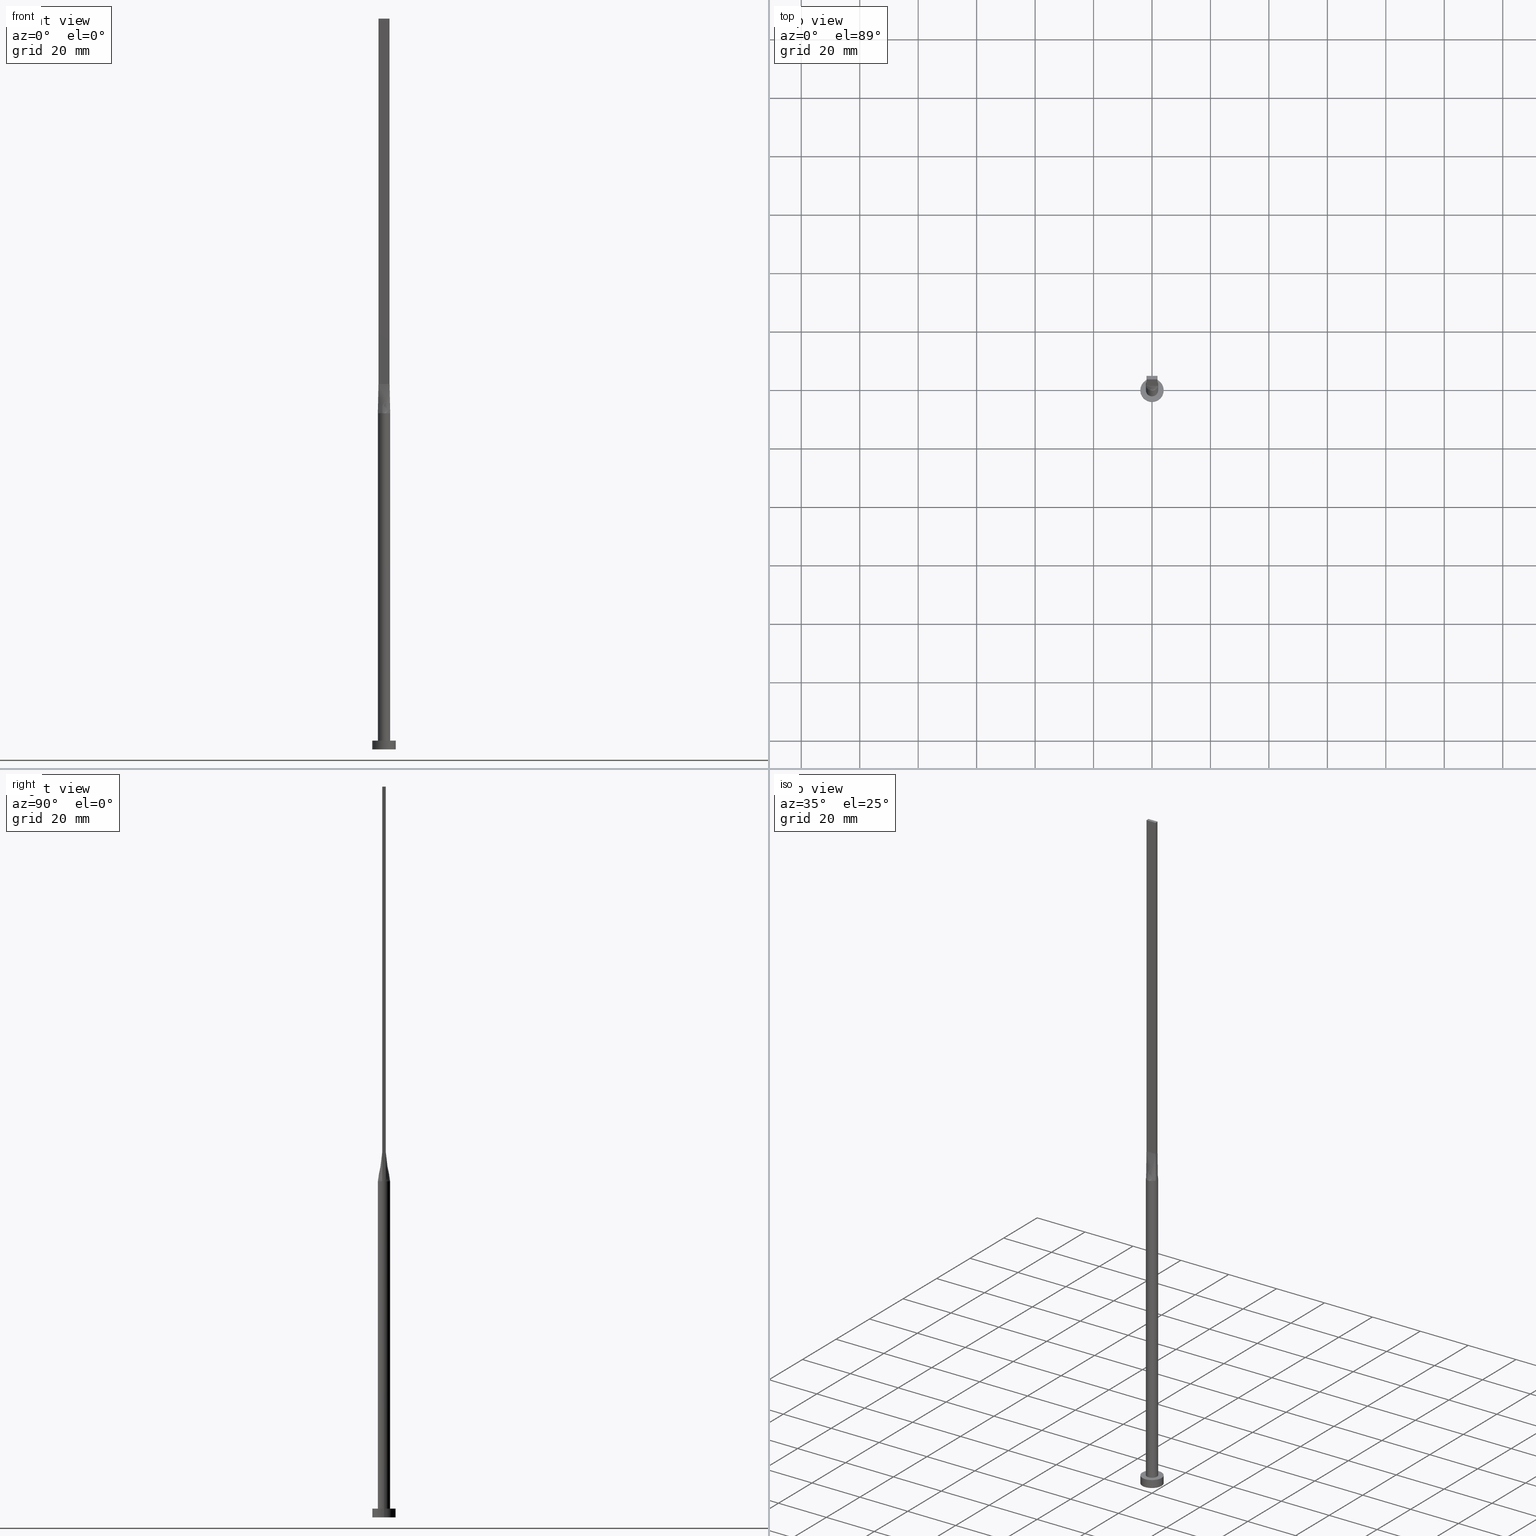
[diagram: canonical four-view strip — front | top / right | iso, engineering-drawing reading convention]
A machine part, canonical four-view strip (front | top / right | iso — engineering-drawing reading convention). The complete STEP part file that produces these views, byte-faithful:
ISO-10303-21;
HEADER;
FILE_DESCRIPTION (( 'STEP AP203' ),
    '1' );
FILE_NAME ('8b6a.STEP',
    '2023-02-13T13:18:50',
    ( '' ),
    ( '' ),
    'SwSTEP 2.0',
    'SolidWorks 2019',
    '' );
FILE_SCHEMA (( 'CONFIG_CONTROL_DESIGN' ));
ENDSEC;

DATA;
#1 = AXIS2_PLACEMENT_3D ( 'NONE', #377, #75, #567 ) ;
#2 = CARTESIAN_POINT ( 'NONE',  ( -0.3166666666666659302, 0.6000000000000000888, 125.0000000000000000 ) ) ;
#3 = DIRECTION ( 'NONE',  ( 1.807003620809174632E-16, 1.000000000000000000, 0.000000000000000000 ) ) ;
#4 = CARTESIAN_POINT ( 'NONE',  ( 0.000000000000000000, 0.000000000000000000, 3.000000000000000000 ) ) ;
#5 = ORIENTED_EDGE ( 'NONE', *, *, #559, .T. ) ;
#6 = APPLICATION_CONTEXT ( 'configuration controlled 3d designs of mechanical parts and assemblies' ) ;
#7 = CIRCLE ( 'NONE', #133, 2.100000000000000089 ) ;
#8 = APPROVAL ( #542, 'NEUR�EN�' ) ;
#9 = ORIENTED_EDGE ( 'NONE', *, *, #176, .T. ) ;
#10 = EDGE_CURVE ( 'NONE', #323, #236, #510, .T. ) ;
#11 = DIRECTION ( 'NONE',  ( 1.000000000000000000, 0.000000000000000000, 0.000000000000000000 ) ) ;
#12 = LINE ( 'NONE', #104, #456 ) ;
#13 = VERTEX_POINT ( 'NONE', #453 ) ;
#14 = ADVANCED_FACE ( 'NONE', ( #61 ), #472, .F. ) ;
#15 = EDGE_CURVE ( 'NONE', #528, #236, #26, .T. ) ;
#16 = LINE ( 'NONE', #231, #225 ) ;
#17 = CARTESIAN_POINT ( 'NONE',  ( 2.002598039528881380, 0.6323997261616642884, 115.0000000000000000 ) ) ;
#18 = EDGE_LOOP ( 'NONE', ( #283, #174, #148, #552 ) ) ;
#19 = CARTESIAN_POINT ( 'NONE',  ( 1.899999999999999689, 0.6000000000000001998, 250.0000000000000000 ) ) ;
#20 = PERSON_AND_ORGANIZATION ( #294, #221 ) ;
#21 = DIRECTION ( 'NONE',  ( 1.000000000000000000, 0.000000000000000000, 0.000000000000000000 ) ) ;
#22 = DIRECTION ( 'NONE',  ( -1.000000000000000000, -0.000000000000000000, -0.000000000000000000 ) ) ;
#23 = CARTESIAN_POINT ( 'NONE',  ( -2.002622288503867587, 0.6324075186587619912, 115.0000000000000000 ) ) ;
#24 = ORIENTED_EDGE ( 'NONE', *, *, #499, .T. ) ;
#25 = PERSON_AND_ORGANIZATION ( #294, #221 ) ;
#26 = CIRCLE ( 'NONE', #101, 2.100000000000000089 ) ;
#27 = PRODUCT_DEFINITION_FORMATION_WITH_SPECIFIED_SOURCE ( 'LIBOVOLN�', '', #83, .NOT_KNOWN. ) ;
#28 = CARTESIAN_POINT ( 'NONE',  ( 2.002523596781697890, -0.6323758726679050701, 115.0000000000000000 ) ) ;
#29 = DATE_AND_TIME ( #239, #46 ) ;
#30 = CARTESIAN_POINT ( 'NONE',  ( -2.002601997802567535, -0.6324010168594718095, 115.0000000000000000 ) ) ;
#31 = CARTESIAN_POINT ( 'NONE',  ( 0.000000000000000000, 0.000000000000000000, 3.000000000000000000 ) ) ;
#32 = CARTESIAN_POINT ( 'NONE',  ( -1.899999999999999467, 0.1999999999999999278, 125.0000000000000000 ) ) ;
#33 = PERSON_AND_ORGANIZATION_ROLE ( 'design_owner' ) ;
#34 = FACE_OUTER_BOUND ( 'NONE', #244, .T. ) ;
#35 = EDGE_LOOP ( 'NONE', ( #91, #356, #36, #533 ) ) ;
#36 = ORIENTED_EDGE ( 'NONE', *, *, #534, .T. ) ;
#37 = CIRCLE ( 'NONE', #546, 2.100000000000000089 ) ;
#38 = FACE_OUTER_BOUND ( 'NONE', #138, .T. ) ;
#39 = CIRCLE ( 'NONE', #506, 4.000000000000000000 ) ;
#40 = APPLICATION_CONTEXT ( 'configuration controlled 3d designs of mechanical parts and assemblies' ) ;
#41 = CARTESIAN_POINT ( 'NONE',  ( -1.667357759214464830, 1.291791096182927534, 115.0000000000000000 ) ) ;
#42 = EDGE_CURVE ( 'NONE', #13, #190, #502, .T. ) ;
#43 = ORIENTED_EDGE ( 'NONE', *, *, #85, .T. ) ;
#44 = ORIENTED_EDGE ( 'NONE', *, *, #193, .T. ) ;
#45 = CARTESIAN_POINT ( 'NONE',  ( 0.1583333333333339366, 0.6000000000000000888, 125.0000000000000000 ) ) ;
#46 = LOCAL_TIME ( 14, 18, 50.00000000000000000, #289 ) ;
#47 = ORIENTED_EDGE ( 'NONE', *, *, #485, .T. ) ;
#48 = PLANE ( 'NONE',  #166 ) ;
#49 = CARTESIAN_POINT ( 'NONE',  ( -1.899999999999999689, 0.6000000000000001998, 250.0000000000000000 ) ) ;
#50 =( NAMED_UNIT ( * ) SI_UNIT ( $, .STERADIAN. ) SOLID_ANGLE_UNIT ( ) );
#51 = ORIENTED_EDGE ( 'NONE', *, *, #42, .T. ) ;
#52 = DIRECTION ( 'NONE',  ( -0.000000000000000000, -0.000000000000000000, -1.000000000000000000 ) ) ;
#53 = CARTESIAN_POINT ( 'NONE',  ( 1.583333333333333703, 0.6000000000000001998, 125.0000000000000000 ) ) ;
#54 = DIRECTION ( 'NONE',  ( -0.000000000000000000, -0.000000000000000000, -1.000000000000000000 ) ) ;
#55 = MANIFOLD_SOLID_BREP ( 'P�idat vysunut�m5', #268 ) ;
#56 = CC_DESIGN_DATE_AND_TIME_ASSIGNMENT ( #470, #119, ( #135 ) ) ;
#57 = LOCAL_TIME ( 14, 18, 50.00000000000000000, #532 ) ;
#58 = CARTESIAN_POINT ( 'NONE',  ( 0.000000000000000000, 0.000000000000000000, 115.0000000000000000 ) ) ;
#59 = CARTESIAN_POINT ( 'NONE',  ( -1.741666666666666030, -0.5999999999999995337, 125.0000000000000000 ) ) ;
#60 = ORIENTED_EDGE ( 'NONE', *, *, #15, .T. ) ;
#61 = FACE_OUTER_BOUND ( 'NONE', #521, .T. ) ;
#62 = VECTOR ( 'NONE', #277, 1000.000000000000114 ) ;
#63 = VECTOR ( 'NONE', #162, 1000.000000000000000 ) ;
#64 = FACE_OUTER_BOUND ( 'NONE', #481, .T. ) ;
#65 = CARTESIAN_POINT ( 'NONE',  ( 1.899999999999999023, -0.5999999999999997558, 250.0000000000000000 ) ) ;
#66 = CARTESIAN_POINT ( 'NONE',  ( -1.952271707612931895, 0.7915068550356629817, 115.0000000000000284 ) ) ;
#67 = ADVANCED_FACE ( 'NONE', ( #496 ), #360, .T. ) ;
#68 = CARTESIAN_POINT ( 'NONE',  ( 2.002523596781697890, 0.6323758726679047371, 115.0000000000000000 ) ) ;
#69 = CARTESIAN_POINT ( 'NONE',  ( -1.899999999999999911, -0.5999999999999995337, 250.0000000000000000 ) ) ;
#70 = ORIENTED_EDGE ( 'NONE', *, *, #98, .T. ) ;
#71 = CARTESIAN_POINT ( 'NONE',  ( 4.000000000000000000, 4.898587196589412829E-16, 3.000000000000000000 ) ) ;
#72 = APPROVAL_STATUS ( 'not_yet_approved' ) ;
#73 = VECTOR ( 'NONE', #275, 1000.000000000000000 ) ;
#74 = AXIS2_PLACEMENT_3D ( 'NONE', #347, #535, #3 ) ;
#75 = DIRECTION ( 'NONE',  ( 0.000000000000000000, 0.000000000000000000, 1.000000000000000000 ) ) ;
#76 = ORIENTED_EDGE ( 'NONE', *, *, #425, .T. ) ;
#77 = CARTESIAN_POINT ( 'NONE',  ( -0.9765948449220482885, 1.875594675604967509, 115.0000000000000284 ) ) ;
#78 = COORDINATED_UNIVERSAL_TIME_OFFSET ( 1, 0, .AHEAD. ) ;
#79 = CARTESIAN_POINT ( 'NONE',  ( -1.878511276496549032, 0.9591670956957809580, 115.0000000000000284 ) ) ;
#80 = CARTESIAN_POINT ( 'NONE',  ( 1.899999999999999689, -0.1999999999999993450, 125.0000000000000000 ) ) ;
#81 = DIRECTION ( 'NONE',  ( 0.000000000000000000, 0.000000000000000000, 1.000000000000000000 ) ) ;
#82 = APPROVAL ( #72, 'NEUR�EN�' ) ;
#83 = PRODUCT ( '8b6a', '8b6a', '', ( #334 ) ) ;
#84 = DIRECTION ( 'NONE',  ( -1.000000000000000000, 5.421010862427522170E-16, 0.000000000000000000 ) ) ;
#85 = EDGE_CURVE ( 'NONE', #190, #226, #444, .T. ) ;
#86 = COORDINATED_UNIVERSAL_TIME_OFFSET ( 1, 0, .AHEAD. ) ;
#87 = ORIENTED_EDGE ( 'NONE', *, *, #461, .F. ) ;
#88 = CARTESIAN_POINT ( 'NONE',  ( -0.6333333333333313053, -0.5999999999999996447, 125.0000000000000000 ) ) ;
#89 = AXIS2_PLACEMENT_3D ( 'NONE', #19, #365, #309 ) ;
#90 = DIRECTION ( 'NONE',  ( -1.000000000000000000, 5.706327223607920020E-17, 0.000000000000000000 ) ) ;
#91 = ORIENTED_EDGE ( 'NONE', *, *, #441, .F. ) ;
#92 = CARTESIAN_POINT ( 'NONE',  ( 0.6333333333333343029, 0.6000000000000000888, 125.0000000000000000 ) ) ;
#93 = CARTESIAN_POINT ( 'NONE',  ( -1.741666666666666474, 0.6000000000000000888, 125.0000000000000000 ) ) ;
#94 = CC_DESIGN_SECURITY_CLASSIFICATION ( #358, ( #27 ) ) ;
#95 = VERTEX_POINT ( 'NONE', #146 ) ;
#96 = DIRECTION ( 'NONE',  ( -1.000000000000000000, 0.000000000000000000, 0.000000000000000000 ) ) ;
#97 = ORIENTED_EDGE ( 'NONE', *, *, #42, .F. ) ;
#98 = EDGE_CURVE ( 'NONE', #528, #130, #257, .T. ) ;
#99 = DIRECTION ( 'NONE',  ( 0.01025176717979709405, -0.003237400162041150116, 0.9999422085850171449 ) ) ;
#100 = PERSON_AND_ORGANIZATION_ROLE ( 'classification_officer' ) ;
#101 = AXIS2_PLACEMENT_3D ( 'NONE', #172, #469, #579 ) ;
#102 = ADVANCED_FACE ( 'NONE', ( #34 ), #48, .T. ) ;
#103 = CARTESIAN_POINT ( 'NONE',  ( 1.184262492297964098, 1.748903470433445628, 114.9999999999999716 ) ) ;
#104 = CARTESIAN_POINT ( 'NONE',  ( -1.951261798390848901, 0.6161879363339521909, 120.0000000000000000 ) ) ;
#105 = ORIENTED_EDGE ( 'NONE', *, *, #411, .F. ) ;
#106 = ORIENTED_EDGE ( 'NONE', *, *, #388, .F. ) ;
#107 = CARTESIAN_POINT ( 'NONE',  ( -1.951261798390848901, -0.6161879363339519688, 120.0000000000000000 ) ) ;
#108 = CARTESIAN_POINT ( 'NONE',  ( 1.899999999999999467, 0.2000000000000006217, 125.0000000000000000 ) ) ;
#109 = VERTEX_POINT ( 'NONE', #558 ) ;
#110 = CC_DESIGN_APPROVAL ( #8, ( #358 ) ) ;
#111 = CARTESIAN_POINT ( 'NONE',  ( 1.952271707612931895, 0.7915068550356627597, 115.0000000000000000 ) ) ;
#112 = EDGE_LOOP ( 'NONE', ( #188, #5, #223, #327, #486, #87 ) ) ;
#113 = CARTESIAN_POINT ( 'NONE',  ( -2.100000000000000089, -1.284268198382905442E-16, 114.9999999999999858 ) ) ;
#114 = DIRECTION ( 'NONE',  ( -0.000000000000000000, -0.000000000000000000, -1.000000000000000000 ) ) ;
#115 = CC_DESIGN_DATE_AND_TIME_ASSIGNMENT ( #581, #495, ( #358 ) ) ;
#116 = ORIENTED_EDGE ( 'NONE', *, *, #193, .F. ) ;
#117 = FACE_OUTER_BOUND ( 'NONE', #232, .T. ) ;
#118 = CARTESIAN_POINT ( 'NONE',  ( 2.100000000000000089, 2.571758278209441957E-16, 3.000000000000000000 ) ) ;
#119 = DATE_TIME_ROLE ( 'creation_date' ) ;
#120 = EDGE_CURVE ( 'NONE', #449, #226, #561, .T. ) ;
#121 = AXIS2_PLACEMENT_3D ( 'NONE', #466, #498, #398 ) ;
#122 = CIRCLE ( 'NONE', #263, 4.000000000000000000 ) ;
#123 = CARTESIAN_POINT ( 'NONE',  ( -2.065999667310664645, -0.4313683159928413113, 115.0000000000000142 ) ) ;
#124 = EDGE_LOOP ( 'NONE', ( #187, #557 ) ) ;
#125 = CARTESIAN_POINT ( 'NONE',  ( 2.002626276893244128, -0.6324088233005202841, 115.0000000000000000 ) ) ;
#126 = CARTESIAN_POINT ( 'NONE',  ( 0.1583333333333351023, -0.5999999999999996447, 125.0000000000000000 ) ) ;
#127 = ORIENTED_EDGE ( 'NONE', *, *, #376, .T. ) ;
#128 = B_SPLINE_SURFACE_WITH_KNOTS ( 'NONE', 3, 1, ( 
 ( #28, #204 ),
 ( #154, #328 ),
 ( #201, #80 ),
 ( #324, #108 ),
 ( #380, #282 ),
 ( #68, #458 ) ),
 .UNSPECIFIED., .F., .F., .F.,
 ( 4, 2, 4 ),
 ( 2, 2 ),
 ( 0.000000000000000000, 0.5000000000000000000, 1.000000000000000000 ),
 ( 0.000000000000000000, 1.000000000000000000 ),
 .UNSPECIFIED. ) ;
#129 = CARTESIAN_POINT ( 'NONE',  ( 0.000000000000000000, 0.000000000000000000, 0.000000000000000000 ) ) ;
#130 = VERTEX_POINT ( 'NONE', #197 ) ;
#131 = LINE ( 'NONE', #278, #497 ) ;
#132 = CARTESIAN_POINT ( 'NONE',  ( 1.529462611013499229, -1.456669187245239971, 115.0000000000000000 ) ) ;
#133 = AXIS2_PLACEMENT_3D ( 'NONE', #273, #560, #11 ) ;
#134 = ORIENTED_EDGE ( 'NONE', *, *, #120, .T. ) ;
#135 = PRODUCT_DEFINITION ( 'NEZN�M�', '', #27, #180 ) ;
#136 = CARTESIAN_POINT ( 'NONE',  ( 1.899999999999999023, -0.5999999999999997558, 125.0000000000000000 ) ) ;
#137 = CARTESIAN_POINT ( 'NONE',  ( -1.529462611013499451, 1.456669187245239527, 114.9999999999999858 ) ) ;
#138 = EDGE_LOOP ( 'NONE', ( #385, #44, #145, #326 ) ) ;
#139 = CARTESIAN_POINT ( 'NONE',  ( 2.100000000000000089, 2.571758278209441957E-16, 115.0000000000000000 ) ) ;
#140 = CARTESIAN_POINT ( 'NONE',  ( -0.6333333333333324155, 0.6000000000000000888, 125.0000000000000000 ) ) ;
#141 = EDGE_CURVE ( 'NONE', #397, #528, #494, .T. ) ;
#142 = VECTOR ( 'NONE', #537, 1000.000000000000000 ) ;
#143 = APPROVAL ( #571, 'NEUR�EN�' ) ;
#144 = CARTESIAN_POINT ( 'NONE',  ( 1.899999999999999689, 0.6000000000000001998, 125.0000000000000000 ) ) ;
#145 = ORIENTED_EDGE ( 'NONE', *, *, #120, .F. ) ;
#146 = CARTESIAN_POINT ( 'NONE',  ( 4.000000000000000000, 4.898587196589412829E-16, 0.000000000000000000 ) ) ;
#147 = AXIS2_PLACEMENT_3D ( 'NONE', #202, #578, #478 ) ;
#148 = ORIENTED_EDGE ( 'NONE', *, *, #485, .F. ) ;
#149 = LINE ( 'NONE', #409, #181 ) ;
#150 = DIRECTION ( 'NONE',  ( 1.000000000000000000, 0.000000000000000000, 0.000000000000000000 ) ) ;
#151 = ORIENTED_EDGE ( 'NONE', *, *, #15, .F. ) ;
#152 = DIRECTION ( 'NONE',  ( 0.000000000000000000, 0.000000000000000000, 1.000000000000000000 ) ) ;
#153 = FACE_OUTER_BOUND ( 'NONE', #422, .T. ) ;
#154 = CARTESIAN_POINT ( 'NONE',  ( 2.065999667310664645, -0.4313683159928419775, 114.9999999999999858 ) ) ;
#155 = CARTESIAN_POINT ( 'NONE',  ( 0.000000000000000000, 0.000000000000000000, 115.0000000000000000 ) ) ;
#156 = PERSON_AND_ORGANIZATION ( #294, #221 ) ;
#157 = ORIENTED_EDGE ( 'NONE', *, *, #159, .F. ) ;
#158 = PERSON_AND_ORGANIZATION ( #294, #221 ) ;
#159 = EDGE_CURVE ( 'NONE', #429, #515, #508, .T. ) ;
#160 = ADVANCED_FACE ( 'NONE', ( #38 ), #167, .T. ) ;
#161 = APPROVAL_DATE_TIME ( #29, #82 ) ;
#162 = DIRECTION ( 'NONE',  ( 5.421010862427522170E-16, 1.000000000000000000, 0.000000000000000000 ) ) ;
#163 = CARTESIAN_POINT ( 'NONE',  ( -2.002523596781697890, 0.6323758726679048481, 115.0000000000000000 ) ) ;
#164 = CARTESIAN_POINT ( 'NONE',  ( -2.100000000000000089, -0.2158003972066306064, 114.9999999999999858 ) ) ;
#165 = FACE_OUTER_BOUND ( 'NONE', #417, .T. ) ;
#166 = AXIS2_PLACEMENT_3D ( 'NONE', #313, #366, #511 ) ;
#167 = B_SPLINE_SURFACE_WITH_KNOTS ( 'NONE', 3, 1, ( 
 ( #387, #219 ),
 ( #213, #436 ),
 ( #346, #53 ),
 ( #405, #489 ),
 ( #503, #445 ),
 ( #408, #550 ),
 ( #184, #92 ),
 ( #256, #437 ),
 ( #442, #45 ),
 ( #261, #218 ),
 ( #355, #2 ),
 ( #182, #140 ),
 ( #353, #543 ),
 ( #137, #490 ),
 ( #41, #434 ),
 ( #79, #177 ),
 ( #538, #93 ),
 ( #246, #342 ) ),
 .UNSPECIFIED., .F., .F., .F.,
 ( 4, 2, 2, 2, 2, 2, 2, 2, 4 ),
 ( 2, 2 ),
 ( 0.000000000000000000, 0.1249999999999999167, 0.2499999999999998890, 0.3749999999999998335, 0.4999999999999998890, 0.6249999999999998890, 0.7499999999999998890, 0.8750000000000000000, 1.000000000000000000 ),
 ( 0.000000000000000000, 1.000000000000000000 ),
 .UNSPECIFIED. ) ;
#168 = CARTESIAN_POINT ( 'NONE',  ( -1.899999999999999689, 0.6000000000000001998, 125.0000000000000000 ) ) ;
#169 = LOCAL_TIME ( 14, 18, 50.00000000000000000, #78 ) ;
#170 = VERTEX_POINT ( 'NONE', #125 ) ;
#171 = CARTESIAN_POINT ( 'NONE',  ( -1.184262492297964098, -1.748903470433446294, 115.0000000000000284 ) ) ;
#172 = CARTESIAN_POINT ( 'NONE',  ( 0.000000000000000000, 0.000000000000000000, 115.0000000000000000 ) ) ;
#173 = DIRECTION ( 'NONE',  ( -1.000000000000000000, 0.000000000000000000, 0.000000000000000000 ) ) ;
#174 = ORIENTED_EDGE ( 'NONE', *, *, #493, .T. ) ;
#175 = CALENDAR_DATE ( 2023, 13, 2 ) ;
#176 = EDGE_CURVE ( 'NONE', #515, #449, #443, .T. ) ;
#177 = CARTESIAN_POINT ( 'NONE',  ( -1.583333333333333037, 0.6000000000000000888, 125.0000000000000000 ) ) ;
#178 = VECTOR ( 'NONE', #52, 1000.000000000000000 ) ;
#179 = CARTESIAN_POINT ( 'NONE',  ( -1.108333333333331838, -0.5999999999999996447, 125.0000000000000000 ) ) ;
#180 = DESIGN_CONTEXT ( 'detailed design', #40, 'design' ) ;
#181 = VECTOR ( 'NONE', #414, 1000.000000000000000 ) ;
#182 = CARTESIAN_POINT ( 'NONE',  ( -0.9765948449220482885, 1.875594675604967509, 115.0000000000000284 ) ) ;
#183 = CARTESIAN_POINT ( 'NONE',  ( 0.9765948449220478444, -1.875594675604967954, 115.0000000000000284 ) ) ;
#184 = CARTESIAN_POINT ( 'NONE',  ( 0.9765948449220478444, 1.875594675604967065, 115.0000000000000000 ) ) ;
#185 = CARTESIAN_POINT ( 'NONE',  ( -2.002523596781697890, -0.6323758726679042930, 115.0000000000000000 ) ) ;
#186 = ORIENTED_EDGE ( 'NONE', *, *, #534, .F. ) ;
#187 = ORIENTED_EDGE ( 'NONE', *, *, #516, .F. ) ;
#188 = ORIENTED_EDGE ( 'NONE', *, *, #430, .F. ) ;
#189 = ORIENTED_EDGE ( 'NONE', *, *, #376, .F. ) ;
#190 = VERTEX_POINT ( 'NONE', #316 ) ;
#191 = CIRCLE ( 'NONE', #395, 2.100000000000000089 ) ;
#192 = CIRCLE ( 'NONE', #279, 2.100000000000000089 ) ;
#193 = EDGE_CURVE ( 'NONE', #397, #226, #12, .T. ) ;
#194 = VERTEX_POINT ( 'NONE', #17 ) ;
#195 = EDGE_LOOP ( 'NONE', ( #258, #60, #545, #189, #116 ) ) ;
#196 = CARTESIAN_POINT ( 'NONE',  ( -1.899999999999999911, -0.5999999999999995337, 125.0000000000000000 ) ) ;
#197 = CARTESIAN_POINT ( 'NONE',  ( -2.100000000000000089, 0.000000000000000000, 3.000000000000000000 ) ) ;
#198 = PERSON_AND_ORGANIZATION_ROLE ( 'design_supplier' ) ;
#199 = APPROVAL_ROLE ( '' ) ;
#200 = ORIENTED_EDGE ( 'NONE', *, *, #467, .T. ) ;
#201 = CARTESIAN_POINT ( 'NONE',  ( 2.099999999999999645, -0.2158003972066312171, 114.9999999999999858 ) ) ;
#202 = CARTESIAN_POINT ( 'NONE',  ( 0.000000000000000000, 0.000000000000000000, 0.000000000000000000 ) ) ;
#203 = CARTESIAN_POINT ( 'NONE',  ( -4.000000000000000000, 0.000000000000000000, 0.000000000000000000 ) ) ;
#204 = CARTESIAN_POINT ( 'NONE',  ( 1.899999999999999911, -0.5999999999999997558, 125.0000000000000000 ) ) ;
#205 = DIRECTION ( 'NONE',  ( 1.000000000000000000, 0.000000000000000000, 0.000000000000000000 ) ) ;
#206 = CARTESIAN_POINT ( 'NONE',  ( -2.002523596781697890, -0.6323758726679044040, 115.0000000000000000 ) ) ;
#207 = CARTESIAN_POINT ( 'NONE',  ( 2.002523596781698334, -0.6323758726679041819, 115.0000000000000000 ) ) ;
#208 = DIRECTION ( 'NONE',  ( 1.000000000000000000, -1.776356839400250465E-15, 0.000000000000000000 ) ) ;
#209 = CIRCLE ( 'NONE', #524, 2.100000000000000089 ) ;
#210 = B_SPLINE_SURFACE_WITH_KNOTS ( 'NONE', 3, 1, ( 
 ( #163, #243 ),
 ( #527, #477 ),
 ( #463, #32 ),
 ( #164, #340 ),
 ( #123, #474 ),
 ( #206, #574 ) ),
 .UNSPECIFIED., .F., .F., .F.,
 ( 4, 2, 4 ),
 ( 2, 2 ),
 ( 0.000000000000000000, 0.5000000000000000000, 1.000000000000000000 ),
 ( 0.000000000000000000, 1.000000000000000000 ),
 .UNSPECIFIED. ) ;
#211 = EDGE_CURVE ( 'NONE', #230, #130, #191, .T. ) ;
#212 = CARTESIAN_POINT ( 'NONE',  ( -1.899999999999999911, -0.5999999999999995337, 125.0000000000000000 ) ) ;
#213 = CARTESIAN_POINT ( 'NONE',  ( 1.952271707612931895, 0.7915068550356627597, 115.0000000000000000 ) ) ;
#214 = CC_DESIGN_PERSON_AND_ORGANIZATION_ASSIGNMENT ( #158, #33, ( #83 ) ) ;
#215 = DIRECTION ( 'NONE',  ( -0.000000000000000000, -0.000000000000000000, -1.000000000000000000 ) ) ;
#216 = CARTESIAN_POINT ( 'NONE',  ( 1.878511276496548366, -0.9591670956957810690, 115.0000000000000284 ) ) ;
#217 = FACE_OUTER_BOUND ( 'NONE', #412, .T. ) ;
#218 = CARTESIAN_POINT ( 'NONE',  ( -0.1583333333333327153, 0.6000000000000000888, 125.0000000000000000 ) ) ;
#219 = CARTESIAN_POINT ( 'NONE',  ( 1.899999999999999689, 0.6000000000000001998, 125.0000000000000000 ) ) ;
#220 = AXIS2_PLACEMENT_3D ( 'NONE', #487, #483, #90 ) ;
#221 = ORGANIZATION ( 'NEUR�EN�', 'NEUR�EN�', '' ) ;
#222 = CARTESIAN_POINT ( 'NONE',  ( -1.899999999999999689, 0.6000000000000001998, 125.0000000000000000 ) ) ;
#223 = ORIENTED_EDGE ( 'NONE', *, *, #211, .T. ) ;
#224 = CARTESIAN_POINT ( 'NONE',  ( -4.000000000000000000, 0.000000000000000000, 3.000000000000000000 ) ) ;
#225 = VECTOR ( 'NONE', #551, 1000.000000000000114 ) ;
#226 = VERTEX_POINT ( 'NONE', #222 ) ;
#227 = CARTESIAN_POINT ( 'NONE',  ( 0.000000000000000000, 0.000000000000000000, 3.000000000000000000 ) ) ;
#228 = ORIENTED_EDGE ( 'NONE', *, *, #516, .T. ) ;
#229 = ORIENTED_EDGE ( 'NONE', *, *, #411, .T. ) ;
#230 = VERTEX_POINT ( 'NONE', #118 ) ;
#231 = CARTESIAN_POINT ( 'NONE',  ( 1.951261798390848901, 0.6161879363339524129, 120.0000000000000000 ) ) ;
#232 = EDGE_LOOP ( 'NONE', ( #254, #186 ) ) ;
#233 = AXIS2_PLACEMENT_3D ( 'NONE', #155, #361, #321 ) ;
#234 = FACE_OUTER_BOUND ( 'NONE', #451, .T. ) ;
#235 = CARTESIAN_POINT ( 'NONE',  ( -1.899999999999999689, 0.6000000000000001998, 125.0000000000000000 ) ) ;
#236 = VERTEX_POINT ( 'NONE', #30 ) ;
#237 = CARTESIAN_POINT ( 'NONE',  ( 0.000000000000000000, 0.000000000000000000, 0.000000000000000000 ) ) ;
#238 = DIRECTION ( 'NONE',  ( -0.000000000000000000, -0.000000000000000000, -1.000000000000000000 ) ) ;
#239 = CALENDAR_DATE ( 2023, 13, 2 ) ;
#240 = APPROVAL_PERSON_ORGANIZATION ( #293, #143, #345 ) ;
#241 = ADVANCED_BREP_SHAPE_REPRESENTATION ( '8b6a', ( #55, #457 ), #330 ) ;
#242 = DIRECTION ( 'NONE',  ( 1.000000000000000000, 0.000000000000000000, 0.000000000000000000 ) ) ;
#243 = CARTESIAN_POINT ( 'NONE',  ( -1.899999999999999689, 0.6000000000000001998, 125.0000000000000000 ) ) ;
#244 = EDGE_LOOP ( 'NONE', ( #51, #575, #333, #501 ) ) ;
#245 = CARTESIAN_POINT ( 'NONE',  ( -1.667357759214464830, 1.291791096182927534, 115.0000000000000000 ) ) ;
#246 = CARTESIAN_POINT ( 'NONE',  ( -2.002523596781697890, 0.6323758726679044040, 115.0000000000000000 ) ) ;
#247 = DIRECTION ( 'NONE',  ( -0.000000000000000000, -0.000000000000000000, -1.000000000000000000 ) ) ;
#248 = PLANE ( 'NONE',  #147 ) ;
#249 = CARTESIAN_POINT ( 'NONE',  ( 0.5124799074986360337, -2.051574327850739454, 115.0000000000000284 ) ) ;
#250 = CARTESIAN_POINT ( 'NONE',  ( 0.000000000000000000, 0.000000000000000000, 115.0000000000000000 ) ) ;
#251 = AXIS2_PLACEMENT_3D ( 'NONE', #335, #520, #242 ) ;
#252 = EDGE_CURVE ( 'NONE', #190, #276, #452, .T. ) ;
#253 = CARTESIAN_POINT ( 'NONE',  ( -0.5124799074986365888, -2.051574327850738566, 115.0000000000000284 ) ) ;
#254 = ORIENTED_EDGE ( 'NONE', *, *, #467, .F. ) ;
#255 = SHAPE_DEFINITION_REPRESENTATION ( #299, #241 ) ;
#256 = CARTESIAN_POINT ( 'NONE',  ( 0.5124799074986362557, 2.051574327850739454, 115.0000000000000568 ) ) ;
#257 = LINE ( 'NONE', #271, #329 ) ;
#258 = ORIENTED_EDGE ( 'NONE', *, *, #141, .T. ) ;
#259 = CARTESIAN_POINT ( 'NONE',  ( -1.266666666666665275, -0.5999999999999996447, 125.0000000000000000 ) ) ;
#260 = APPROVAL_ROLE ( '' ) ;
#261 = CARTESIAN_POINT ( 'NONE',  ( -0.2565105576742073845, 2.100000000000000533, 115.0000000000000284 ) ) ;
#262 = VECTOR ( 'NONE', #264, 1000.000000000000000 ) ;
#263 = AXIS2_PLACEMENT_3D ( 'NONE', #237, #332, #21 ) ;
#264 = DIRECTION ( 'NONE',  ( -1.807003620809174632E-16, -1.000000000000000000, 0.000000000000000000 ) ) ;
#265 = DIRECTION ( 'NONE',  ( -1.807003620809174139E-16, 1.000000000000000000, -0.000000000000000000 ) ) ;
#266 = CARTESIAN_POINT ( 'NONE',  ( -1.899999999999999911, -0.5999999999999995337, 125.0000000000000000 ) ) ;
#267 = CARTESIAN_POINT ( 'NONE',  ( 1.899999999999999689, 0.6000000000000001998, 250.0000000000000000 ) ) ;
#268 = CLOSED_SHELL ( 'NONE', ( #295, #67, #352, #402, #286, #509, #359, #390, #274, #160, #540, #541, #305, #14, #102 ) ) ;
#269 = APPROVAL_PERSON_ORGANIZATION ( #25, #82, #199 ) ;
#270 =( NAMED_UNIT ( * ) PLANE_ANGLE_UNIT ( ) SI_UNIT ( $, .RADIAN. ) );
#271 = CARTESIAN_POINT ( 'NONE',  ( -2.100000000000000089, 0.000000000000000000, 115.0000000000000000 ) ) ;
#272 = DIRECTION ( 'NONE',  ( 1.000000000000000000, 0.000000000000000000, 0.000000000000000000 ) ) ;
#273 = CARTESIAN_POINT ( 'NONE',  ( 0.000000000000000000, 0.000000000000000000, 115.0000000000000000 ) ) ;
#274 = ADVANCED_FACE ( 'NONE', ( #369 ), #210, .T. ) ;
#275 = DIRECTION ( 'NONE',  ( -0.000000000000000000, -0.000000000000000000, -1.000000000000000000 ) ) ;
#276 = VERTEX_POINT ( 'NONE', #529 ) ;
#277 = DIRECTION ( 'NONE',  ( -0.01025176717979707323, -0.003237400162041204326, -0.9999422085850171449 ) ) ;
#278 = CARTESIAN_POINT ( 'NONE',  ( -1.899999999999999911, -0.5999999999999995337, 250.0000000000000000 ) ) ;
#279 = AXIS2_PLACEMENT_3D ( 'NONE', #31, #371, #205 ) ;
#280 = EDGE_CURVE ( 'NONE', #170, #109, #209, .T. ) ;
#281 = CARTESIAN_POINT ( 'NONE',  ( 1.878511276496548366, 0.9591670956957804028, 115.0000000000000000 ) ) ;
#282 = CARTESIAN_POINT ( 'NONE',  ( 1.899999999999999467, 0.4000000000000004663, 125.0000000000000000 ) ) ;
#283 = ORIENTED_EDGE ( 'NONE', *, *, #379, .T. ) ;
#284 = DIRECTION ( 'NONE',  ( -0.01025176717979720507, 0.003237400162041171366, 0.9999422085850171449 ) ) ;
#285 = DATE_AND_TIME ( #475, #341 ) ;
#286 = ADVANCED_FACE ( 'NONE', ( #117 ), #248, .F. ) ;
#287 = PERSON_AND_ORGANIZATION_ROLE ( 'creator' ) ;
#288 = ORIENTED_EDGE ( 'NONE', *, *, #280, .F. ) ;
#289 = COORDINATED_UNIVERSAL_TIME_OFFSET ( 1, 0, .AHEAD. ) ;
#290 = AXIS2_PLACEMENT_3D ( 'NONE', #384, #84, #577 ) ;
#291 = VECTOR ( 'NONE', #215, 1000.000000000000000 ) ;
#292 = CARTESIAN_POINT ( 'NONE',  ( 1.108333333333333615, -0.5999999999999996447, 125.0000000000000000 ) ) ;
#293 = PERSON_AND_ORGANIZATION ( #294, #221 ) ;
#294 = PERSON ( 'NEUR�EN�', 'NEUR�EN�', 'NEUR�EN�', ('NEUR�EN�'), ('NEUR�EN�'), ('NEUR�EN�') ) ;
#295 = ADVANCED_FACE ( 'NONE', ( #336 ), #431, .T. ) ;
#296 = DIRECTION ( 'NONE',  ( 0.000000000000000000, 0.000000000000000000, 1.000000000000000000 ) ) ;
#297 = ORIENTED_EDGE ( 'NONE', *, *, #493, .F. ) ;
#298 = FACE_OUTER_BOUND ( 'NONE', #18, .T. ) ;
#299 = PRODUCT_DEFINITION_SHAPE ( 'NONE', 'NONE',  #135 ) ;
#300 = CARTESIAN_POINT ( 'NONE',  ( 1.667357759214464830, -1.291791096182927534, 115.0000000000000284 ) ) ;
#301 = EDGE_CURVE ( 'NONE', #400, #381, #399, .T. ) ;
#302 = VECTOR ( 'NONE', #284, 1000.000000000000114 ) ;
#303 = ORIENTED_EDGE ( 'NONE', *, *, #420, .F. ) ;
#304 = ORIENTED_EDGE ( 'NONE', *, *, #425, .F. ) ;
#305 = ADVANCED_FACE ( 'NONE', ( #403 ), #312, .F. ) ;
#306 = DATE_AND_TIME ( #175, #424 ) ;
#307 = LINE ( 'NONE', #168, #262 ) ;
#308 = CARTESIAN_POINT ( 'NONE',  ( -1.667357759214464386, -1.291791096182926424, 115.0000000000000000 ) ) ;
#309 = DIRECTION ( 'NONE',  ( 0.000000000000000000, -0.000000000000000000, -1.000000000000000000 ) ) ;
#310 = CIRCLE ( 'NONE', #251, 4.000000000000000000 ) ;
#311 = ORIENTED_EDGE ( 'NONE', *, *, #252, .F. ) ;
#312 = PLANE ( 'NONE',  #220 ) ;
#313 = CARTESIAN_POINT ( 'NONE',  ( 0.000000000000000000, 0.000000000000000000, 250.0000000000000000 ) ) ;
#314 =( LENGTH_UNIT ( ) NAMED_UNIT ( * ) SI_UNIT ( .MILLI., .METRE. ) );
#315 = CC_DESIGN_PERSON_AND_ORGANIZATION_ASSIGNMENT ( #156, #100, ( #358 ) ) ;
#316 = CARTESIAN_POINT ( 'NONE',  ( -1.899999999999999689, 0.6000000000000001998, 250.0000000000000000 ) ) ;
#317 = VERTEX_POINT ( 'NONE', #391 ) ;
#318 = CARTESIAN_POINT ( 'NONE',  ( 0.000000000000000000, 0.000000000000000000, 3.000000000000000000 ) ) ;
#319 = VECTOR ( 'NONE', #22, 1000.000000000000000 ) ;
#320 = CIRCLE ( 'NONE', #351, 4.000000000000000000 ) ;
#321 = DIRECTION ( 'NONE',  ( 1.000000000000000000, 0.000000000000000000, 0.000000000000000000 ) ) ;
#322 = ORIENTED_EDGE ( 'NONE', *, *, #563, .F. ) ;
#323 = VERTEX_POINT ( 'NONE', #212 ) ;
#324 = CARTESIAN_POINT ( 'NONE',  ( 2.100000000000000089, 0.2158003972066308285, 114.9999999999999858 ) ) ;
#325 = CARTESIAN_POINT ( 'NONE',  ( -0.5124799074986362557, 2.051574327850739454, 115.0000000000000284 ) ) ;
#326 = ORIENTED_EDGE ( 'NONE', *, *, #448, .F. ) ;
#327 = ORIENTED_EDGE ( 'NONE', *, *, #98, .F. ) ;
#328 = CARTESIAN_POINT ( 'NONE',  ( 1.899999999999999689, -0.3999999999999994116, 125.0000000000000000 ) ) ;
#329 = VECTOR ( 'NONE', #54, 1000.000000000000000 ) ;
#330 =( GEOMETRIC_REPRESENTATION_CONTEXT ( 3 ) GLOBAL_UNCERTAINTY_ASSIGNED_CONTEXT ( ( #500 ) ) GLOBAL_UNIT_ASSIGNED_CONTEXT ( ( #314, #270, #50 ) ) REPRESENTATION_CONTEXT ( 'NONE', 'WORKASPACE' ) );
#331 = DIRECTION ( 'NONE',  ( 1.000000000000000000, -5.706327223607920020E-17, 0.000000000000000000 ) ) ;
#332 = DIRECTION ( 'NONE',  ( 0.000000000000000000, 0.000000000000000000, 1.000000000000000000 ) ) ;
#333 = ORIENTED_EDGE ( 'NONE', *, *, #563, .T. ) ;
#334 = MECHANICAL_CONTEXT ( 'NONE', #6, 'mechanical' ) ;
#335 = CARTESIAN_POINT ( 'NONE',  ( 0.000000000000000000, 0.000000000000000000, 3.000000000000000000 ) ) ;
#336 = FACE_OUTER_BOUND ( 'NONE', #112, .T. ) ;
#337 = CALENDAR_DATE ( 2023, 13, 2 ) ;
#338 = LINE ( 'NONE', #71, #357 ) ;
#339 = DIRECTION ( 'NONE',  ( 1.000000000000000000, 0.000000000000000000, 0.000000000000000000 ) ) ;
#340 = CARTESIAN_POINT ( 'NONE',  ( -1.899999999999999689, -0.1999999999999999278, 125.0000000000000000 ) ) ;
#341 = LOCAL_TIME ( 14, 18, 50.00000000000000000, #428 ) ;
#342 = CARTESIAN_POINT ( 'NONE',  ( -1.899999999999999689, 0.6000000000000001998, 125.0000000000000000 ) ) ;
#343 = CARTESIAN_POINT ( 'NONE',  ( -0.1583333333333314941, -0.5999999999999996447, 125.0000000000000000 ) ) ;
#344 = LINE ( 'NONE', #139, #291 ) ;
#345 = APPROVAL_ROLE ( '' ) ;
#346 = CARTESIAN_POINT ( 'NONE',  ( 1.878511276496548366, 0.9591670956957804028, 115.0000000000000000 ) ) ;
#347 = CARTESIAN_POINT ( 'NONE',  ( -1.899999999999999689, 0.6000000000000001998, 250.0000000000000000 ) ) ;
#348 = CARTESIAN_POINT ( 'NONE',  ( 1.184262492297964320, -1.748903470433446961, 115.0000000000000426 ) ) ;
#349 = CARTESIAN_POINT ( 'NONE',  ( -0.3166666666666647090, -0.5999999999999996447, 125.0000000000000000 ) ) ;
#350 = VECTOR ( 'NONE', #439, 1000.000000000000000 ) ;
#351 = AXIS2_PLACEMENT_3D ( 'NONE', #318, #152, #367 ) ;
#352 = ADVANCED_FACE ( 'NONE', ( #525 ), #569, .T. ) ;
#353 = CARTESIAN_POINT ( 'NONE',  ( -1.184262492297963876, 1.748903470433446294, 115.0000000000000142 ) ) ;
#354 = CARTESIAN_POINT ( 'NONE',  ( 1.952271707612932339, -0.7915068550356634258, 115.0000000000000142 ) ) ;
#355 = CARTESIAN_POINT ( 'NONE',  ( -0.5124799074986362557, 2.051574327850739454, 115.0000000000000284 ) ) ;
#356 = ORIENTED_EDGE ( 'NONE', *, *, #388, .T. ) ;
#357 = VECTOR ( 'NONE', #247, 1000.000000000000000 ) ;
#358 = SECURITY_CLASSIFICATION ( '', '', #447 ) ;
#359 = ADVANCED_FACE ( 'NONE', ( #298 ), #386, .T. ) ;
#360 = CYLINDRICAL_SURFACE ( 'NONE', #423, 4.000000000000000000 ) ;
#361 = DIRECTION ( 'NONE',  ( 0.000000000000000000, 0.000000000000000000, 1.000000000000000000 ) ) ;
#362 = PRODUCT_RELATED_PRODUCT_CATEGORY ( 'detail', '', ( #83 ) ) ;
#363 = CARTESIAN_POINT ( 'NONE',  ( 0.5124799074986362557, 2.051574327850739454, 115.0000000000000568 ) ) ;
#364 = CARTESIAN_POINT ( 'NONE',  ( 1.899999999999999023, -0.5999999999999997558, 250.0000000000000000 ) ) ;
#365 = DIRECTION ( 'NONE',  ( 0.000000000000000000, -1.000000000000000000, 0.000000000000000000 ) ) ;
#366 = DIRECTION ( 'NONE',  ( 0.000000000000000000, 0.000000000000000000, 1.000000000000000000 ) ) ;
#367 = DIRECTION ( 'NONE',  ( 1.000000000000000000, 0.000000000000000000, 0.000000000000000000 ) ) ;
#368 = PERSON_AND_ORGANIZATION ( #294, #221 ) ;
#369 = FACE_OUTER_BOUND ( 'NONE', #195, .T. ) ;
#370 = ORIENTED_EDGE ( 'NONE', *, *, #499, .F. ) ;
#371 = DIRECTION ( 'NONE',  ( 0.000000000000000000, 0.000000000000000000, 1.000000000000000000 ) ) ;
#372 = LINE ( 'NONE', #196, #565 ) ;
#373 = CARTESIAN_POINT ( 'NONE',  ( -1.529462611013499451, 1.456669187245239527, 114.9999999999999858 ) ) ;
#374 = AXIS2_PLACEMENT_3D ( 'NONE', #570, #114, #173 ) ;
#375 = PERSON_AND_ORGANIZATION ( #294, #221 ) ;
#376 = EDGE_CURVE ( 'NONE', #226, #323, #307, .T. ) ;
#377 = CARTESIAN_POINT ( 'NONE',  ( 0.000000000000000000, 0.000000000000000000, 3.000000000000000000 ) ) ;
#378 = DIRECTION ( 'NONE',  ( -1.807003620809174632E-16, -1.000000000000000000, 0.000000000000000000 ) ) ;
#379 = EDGE_CURVE ( 'NONE', #236, #170, #37, .T. ) ;
#380 = CARTESIAN_POINT ( 'NONE',  ( 2.065999667310664645, 0.4313683159928415889, 115.0000000000000142 ) ) ;
#381 = VERTEX_POINT ( 'NONE', #203 ) ;
#382 = CARTESIAN_POINT ( 'NONE',  ( -1.899999999999999689, 0.6000000000000001998, 250.0000000000000000 ) ) ;
#383 = VECTOR ( 'NONE', #265, 1000.000000000000000 ) ;
#384 = CARTESIAN_POINT ( 'NONE',  ( 1.899999999999999023, -0.5999999999999997558, 250.0000000000000000 ) ) ;
#385 = ORIENTED_EDGE ( 'NONE', *, *, #461, .T. ) ;
#386 = B_SPLINE_SURFACE_WITH_KNOTS ( 'NONE', 3, 1, ( 
 ( #185, #266 ),
 ( #482, #59 ),
 ( #576, #544 ),
 ( #308, #259 ),
 ( #389, #179 ),
 ( #171, #492 ),
 ( #476, #88 ),
 ( #253, #349 ),
 ( #539, #343 ),
 ( #526, #126 ),
 ( #249, #580 ),
 ( #183, #433 ),
 ( #348, #536 ),
 ( #132, #292 ),
 ( #300, #484 ),
 ( #216, #393 ),
 ( #354, #473 ),
 ( #207, #136 ) ),
 .UNSPECIFIED., .F., .F., .F.,
 ( 4, 2, 2, 2, 2, 2, 2, 2, 4 ),
 ( 2, 2 ),
 ( 0.000000000000000000, 0.1250000000000000833, 0.2500000000000001110, 0.3750000000000001110, 0.5000000000000001110, 0.6250000000000001110, 0.7500000000000000000, 0.8750000000000000000, 1.000000000000000000 ),
 ( 0.000000000000000000, 1.000000000000000000 ),
 .UNSPECIFIED. ) ;
#387 = CARTESIAN_POINT ( 'NONE',  ( 2.002523596781697890, 0.6323758726679044040, 115.0000000000000000 ) ) ;
#388 = EDGE_CURVE ( 'NONE', #317, #95, #338, .T. ) ;
#389 = CARTESIAN_POINT ( 'NONE',  ( -1.529462611013499229, -1.456669187245239749, 115.0000000000000000 ) ) ;
#390 = ADVANCED_FACE ( 'NONE', ( #153 ), #128, .T. ) ;
#391 = CARTESIAN_POINT ( 'NONE',  ( 4.000000000000000000, 4.898587196589412829E-16, 3.000000000000000000 ) ) ;
#392 = CALENDAR_DATE ( 2023, 13, 2 ) ;
#393 = CARTESIAN_POINT ( 'NONE',  ( 1.583333333333333037, -0.5999999999999996447, 125.0000000000000000 ) ) ;
#394 = PLANE ( 'NONE',  #74 ) ;
#395 = AXIS2_PLACEMENT_3D ( 'NONE', #4, #556, #150 ) ;
#396 = CC_DESIGN_APPROVAL ( #143, ( #27 ) ) ;
#397 = VERTEX_POINT ( 'NONE', #462 ) ;
#398 = DIRECTION ( 'NONE',  ( -1.000000000000000000, 0.000000000000000000, 0.000000000000000000 ) ) ;
#399 = LINE ( 'NONE', #224, #142 ) ;
#400 = VERTEX_POINT ( 'NONE', #419 ) ;
#401 = ORIENTED_EDGE ( 'NONE', *, *, #159, .T. ) ;
#402 = ADVANCED_FACE ( 'NONE', ( #517, #64 ), #468, .T. ) ;
#403 = FACE_OUTER_BOUND ( 'NONE', #507, .T. ) ;
#404 = EDGE_LOOP ( 'NONE', ( #106, #105, #415, #200 ) ) ;
#405 = CARTESIAN_POINT ( 'NONE',  ( 1.667357759214464608, 1.291791096182927090, 115.0000000000000142 ) ) ;
#406 = CC_DESIGN_APPROVAL ( #82, ( #135 ) ) ;
#407 = DIRECTION ( 'NONE',  ( -0.000000000000000000, -0.000000000000000000, -1.000000000000000000 ) ) ;
#408 = CARTESIAN_POINT ( 'NONE',  ( 1.184262492297964098, 1.748903470433445628, 114.9999999999999716 ) ) ;
#409 = CARTESIAN_POINT ( 'NONE',  ( 1.899999999999999689, 0.6000000000000001998, 250.0000000000000000 ) ) ;
#410 = ORIENTED_EDGE ( 'NONE', *, *, #448, .T. ) ;
#411 = EDGE_CURVE ( 'NONE', #400, #317, #310, .T. ) ;
#412 = EDGE_LOOP ( 'NONE', ( #127, #370, #311, #43 ) ) ;
#413 = CARTESIAN_POINT ( 'NONE',  ( 0.9765948449220478444, 1.875594675604967065, 115.0000000000000000 ) ) ;
#414 = DIRECTION ( 'NONE',  ( -0.000000000000000000, -0.000000000000000000, -1.000000000000000000 ) ) ;
#415 = ORIENTED_EDGE ( 'NONE', *, *, #301, .T. ) ;
#416 = PLANE ( 'NONE',  #89 ) ;
#417 = EDGE_LOOP ( 'NONE', ( #454, #288, #464, #151, #70, #228 ) ) ;
#418 = APPROVAL_DATE_TIME ( #285, #143 ) ;
#419 = CARTESIAN_POINT ( 'NONE',  ( -4.000000000000000000, 0.000000000000000000, 3.000000000000000000 ) ) ;
#420 = EDGE_CURVE ( 'NONE', #429, #13, #426, .T. ) ;
#421 = DIRECTION ( 'NONE',  ( 0.000000000000000000, 0.000000000000000000, 1.000000000000000000 ) ) ;
#422 = EDGE_LOOP ( 'NONE', ( #435, #568, #410, #459, #297 ) ) ;
#423 = AXIS2_PLACEMENT_3D ( 'NONE', #227, #407, #96 ) ;
#424 = LOCAL_TIME ( 14, 18, 50.00000000000000000, #86 ) ;
#425 = EDGE_CURVE ( 'NONE', #13, #449, #149, .T. ) ;
#426 = LINE ( 'NONE', #572, #63 ) ;
#427 = CARTESIAN_POINT ( 'NONE',  ( 1.899999999999999023, -0.5999999999999997558, 125.0000000000000000 ) ) ;
#428 = COORDINATED_UNIVERSAL_TIME_OFFSET ( 1, 0, .AHEAD. ) ;
#429 = VERTEX_POINT ( 'NONE', #364 ) ;
#430 = EDGE_CURVE ( 'NONE', #109, #194, #7, .T. ) ;
#431 = CYLINDRICAL_SURFACE ( 'NONE', #438, 2.100000000000000089 ) ;
#432 = APPLICATION_PROTOCOL_DEFINITION ( 'international standard', 'config_control_design', 1994, #6 ) ;
#433 = CARTESIAN_POINT ( 'NONE',  ( 0.6333333333333348580, -0.5999999999999996447, 125.0000000000000000 ) ) ;
#434 = CARTESIAN_POINT ( 'NONE',  ( -1.266666666666666163, 0.6000000000000000888, 125.0000000000000000 ) ) ;
#435 = ORIENTED_EDGE ( 'NONE', *, *, #280, .T. ) ;
#436 = CARTESIAN_POINT ( 'NONE',  ( 1.741666666666666696, 0.6000000000000001998, 125.0000000000000000 ) ) ;
#437 = CARTESIAN_POINT ( 'NONE',  ( 0.3166666666666675400, 0.6000000000000000888, 125.0000000000000000 ) ) ;
#438 = AXIS2_PLACEMENT_3D ( 'NONE', #523, #547, #491 ) ;
#439 = DIRECTION ( 'NONE',  ( -1.000000000000000000, 0.000000000000000000, 0.000000000000000000 ) ) ;
#440 = VECTOR ( 'NONE', #238, 1000.000000000000000 ) ;
#441 = EDGE_CURVE ( 'NONE', #317, #400, #320, .T. ) ;
#442 = CARTESIAN_POINT ( 'NONE',  ( 0.2565105576742081062, 2.100000000000000533, 115.0000000000000426 ) ) ;
#443 = LINE ( 'NONE', #144, #383 ) ;
#444 = LINE ( 'NONE', #49, #178 ) ;
#445 = CARTESIAN_POINT ( 'NONE',  ( 1.108333333333334059, 0.6000000000000000888, 125.0000000000000000 ) ) ;
#446 = CARTESIAN_POINT ( 'NONE',  ( 1.667357759214464608, 1.291791096182927090, 115.0000000000000142 ) ) ;
#447 = SECURITY_CLASSIFICATION_LEVEL ( 'unclassified' ) ;
#448 = EDGE_CURVE ( 'NONE', #194, #449, #16, .T. ) ;
#449 = VERTEX_POINT ( 'NONE', #512 ) ;
#450 = PERSON_AND_ORGANIZATION_ROLE ( 'creator' ) ;
#451 = EDGE_LOOP ( 'NONE', ( #134, #455, #97, #76 ) ) ;
#452 = LINE ( 'NONE', #382, #555 ) ;
#453 = CARTESIAN_POINT ( 'NONE',  ( 1.899999999999999689, 0.6000000000000001998, 250.0000000000000000 ) ) ;
#454 = ORIENTED_EDGE ( 'NONE', *, *, #559, .F. ) ;
#455 = ORIENTED_EDGE ( 'NONE', *, *, #85, .F. ) ;
#456 = VECTOR ( 'NONE', #99, 1000.000000000000114 ) ;
#457 = AXIS2_PLACEMENT_3D ( 'NONE', #129, #296, #480 ) ;
#458 = CARTESIAN_POINT ( 'NONE',  ( 1.899999999999999689, 0.6000000000000001998, 125.0000000000000000 ) ) ;
#459 = ORIENTED_EDGE ( 'NONE', *, *, #176, .F. ) ;
#460 = CARTESIAN_POINT ( 'NONE',  ( -1.878511276496549032, 0.9591670956957809580, 115.0000000000000284 ) ) ;
#461 = EDGE_CURVE ( 'NONE', #194, #397, #479, .T. ) ;
#462 = CARTESIAN_POINT ( 'NONE',  ( -2.002622288503867587, 0.6324075186587619912, 115.0000000000000000 ) ) ;
#463 = CARTESIAN_POINT ( 'NONE',  ( -2.099999999999999645, 0.2158003972066311338, 114.9999999999999858 ) ) ;
#464 = ORIENTED_EDGE ( 'NONE', *, *, #379, .F. ) ;
#465 = LINE ( 'NONE', #69, #440 ) ;
#466 = CARTESIAN_POINT ( 'NONE',  ( 0.000000000000000000, 0.000000000000000000, 3.000000000000000000 ) ) ;
#467 = EDGE_CURVE ( 'NONE', #381, #95, #122, .T. ) ;
#468 = PLANE ( 'NONE',  #1 ) ;
#469 = DIRECTION ( 'NONE',  ( 0.000000000000000000, 0.000000000000000000, 1.000000000000000000 ) ) ;
#470 = DATE_AND_TIME ( #337, #169 ) ;
#471 = CARTESIAN_POINT ( 'NONE',  ( -0.2565105576742073845, 2.100000000000000533, 115.0000000000000284 ) ) ;
#472 = PLANE ( 'NONE',  #290 ) ;
#473 = CARTESIAN_POINT ( 'NONE',  ( 1.741666666666666030, -0.5999999999999997558, 125.0000000000000000 ) ) ;
#474 = CARTESIAN_POINT ( 'NONE',  ( -1.899999999999999689, -0.3999999999999997446, 125.0000000000000000 ) ) ;
#475 = CALENDAR_DATE ( 2023, 13, 2 ) ;
#476 = CARTESIAN_POINT ( 'NONE',  ( -0.9765948449220485106, -1.875594675604967509, 115.0000000000000284 ) ) ;
#477 = CARTESIAN_POINT ( 'NONE',  ( -1.899999999999999467, 0.3999999999999999667, 125.0000000000000000 ) ) ;
#478 = DIRECTION ( 'NONE',  ( 1.000000000000000000, 0.000000000000000000, -0.000000000000000000 ) ) ;
#479 = B_SPLINE_CURVE_WITH_KNOTS ( 'NONE', 3,
 ( #504, #111, #281, #446, #548, #103, #413, #363, #522, #471, #325, #77, #566, #373, #245, #460, #66, #23 ),
 .UNSPECIFIED., .F., .F.,
 ( 4, 2, 2, 2, 2, 2, 2, 2, 4 ),
 ( 0.000000000000000000, 0.1249999999999999167, 0.2499999999999998890, 0.3749999999999998335, 0.4999999999999998890, 0.6249999999999998890, 0.7499999999999998890, 0.8750000000000000000, 1.000000000000000000 ),
 .UNSPECIFIED. ) ;
#480 = DIRECTION ( 'NONE',  ( 1.000000000000000000, 0.000000000000000000, 0.000000000000000000 ) ) ;
#481 = EDGE_LOOP ( 'NONE', ( #229, #553 ) ) ;
#482 = CARTESIAN_POINT ( 'NONE',  ( -1.952271707612931895, -0.7915068550356626487, 115.0000000000000000 ) ) ;
#483 = DIRECTION ( 'NONE',  ( 5.706327223607920020E-17, 1.000000000000000000, -0.000000000000000000 ) ) ;
#484 = CARTESIAN_POINT ( 'NONE',  ( 1.266666666666666829, -0.5999999999999996447, 125.0000000000000000 ) ) ;
#485 = EDGE_CURVE ( 'NONE', #323, #515, #372, .T. ) ;
#486 = ORIENTED_EDGE ( 'NONE', *, *, #141, .F. ) ;
#487 = CARTESIAN_POINT ( 'NONE',  ( -1.899999999999999911, -0.5999999999999995337, 250.0000000000000000 ) ) ;
#488 = APPROVAL_DATE_TIME ( #306, #8 ) ;
#489 = CARTESIAN_POINT ( 'NONE',  ( 1.266666666666667274, 0.6000000000000000888, 125.0000000000000000 ) ) ;
#490 = CARTESIAN_POINT ( 'NONE',  ( -1.108333333333332726, 0.6000000000000000888, 125.0000000000000000 ) ) ;
#491 = DIRECTION ( 'NONE',  ( -1.000000000000000000, 0.000000000000000000, 0.000000000000000000 ) ) ;
#492 = CARTESIAN_POINT ( 'NONE',  ( -0.7916666666666648533, -0.5999999999999996447, 125.0000000000000000 ) ) ;
#493 = EDGE_CURVE ( 'NONE', #170, #515, #514, .T. ) ;
#494 = CIRCLE ( 'NONE', #233, 2.100000000000000089 ) ;
#495 = DATE_TIME_ROLE ( 'classification_date' ) ;
#496 = FACE_OUTER_BOUND ( 'NONE', #35, .T. ) ;
#497 = VECTOR ( 'NONE', #331, 1000.000000000000000 ) ;
#498 = DIRECTION ( 'NONE',  ( -0.000000000000000000, -0.000000000000000000, -1.000000000000000000 ) ) ;
#499 = EDGE_CURVE ( 'NONE', #276, #323, #465, .T. ) ;
#500 = UNCERTAINTY_MEASURE_WITH_UNIT (LENGTH_MEASURE( 1.000000000000000082E-05 ), #314, 'distance_accuracy_value', 'NONE');
#501 = ORIENTED_EDGE ( 'NONE', *, *, #420, .T. ) ;
#502 = LINE ( 'NONE', #267, #350 ) ;
#503 = CARTESIAN_POINT ( 'NONE',  ( 1.529462611013499451, 1.456669187245239527, 115.0000000000000142 ) ) ;
#504 = CARTESIAN_POINT ( 'NONE',  ( 2.002598039528881380, 0.6323997261616642884, 115.0000000000000000 ) ) ;
#505 = CC_DESIGN_PERSON_AND_ORGANIZATION_ASSIGNMENT ( #20, #450, ( #27 ) ) ;
#506 = AXIS2_PLACEMENT_3D ( 'NONE', #573, #421, #339 ) ;
#507 = EDGE_LOOP ( 'NONE', ( #47, #157, #322, #24 ) ) ;
#508 = LINE ( 'NONE', #65, #73 ) ;
#509 = ADVANCED_FACE ( 'NONE', ( #165 ), #564, .T. ) ;
#510 = LINE ( 'NONE', #107, #62 ) ;
#511 = DIRECTION ( 'NONE',  ( 1.000000000000000000, 0.000000000000000000, -0.000000000000000000 ) ) ;
#512 = CARTESIAN_POINT ( 'NONE',  ( 1.899999999999999689, 0.6000000000000001998, 125.0000000000000000 ) ) ;
#513 = APPROVAL_PERSON_ORGANIZATION ( #530, #8, #260 ) ;
#514 = LINE ( 'NONE', #518, #302 ) ;
#515 = VERTEX_POINT ( 'NONE', #427 ) ;
#516 = EDGE_CURVE ( 'NONE', #130, #230, #192, .T. ) ;
#517 = FACE_BOUND ( 'NONE', #124, .T. ) ;
#518 = CARTESIAN_POINT ( 'NONE',  ( 1.951261798390848901, -0.6161879363339519688, 120.0000000000000000 ) ) ;
#519 = APPLICATION_PROTOCOL_DEFINITION ( 'international standard', 'config_control_design', 1994, #40 ) ;
#520 = DIRECTION ( 'NONE',  ( 0.000000000000000000, 0.000000000000000000, 1.000000000000000000 ) ) ;
#521 = EDGE_LOOP ( 'NONE', ( #9, #304, #303, #401 ) ) ;
#522 = CARTESIAN_POINT ( 'NONE',  ( 0.2565105576742081062, 2.100000000000000533, 115.0000000000000426 ) ) ;
#523 = CARTESIAN_POINT ( 'NONE',  ( 0.000000000000000000, 0.000000000000000000, 115.0000000000000000 ) ) ;
#524 = AXIS2_PLACEMENT_3D ( 'NONE', #250, #81, #208 ) ;
#525 = FACE_OUTER_BOUND ( 'NONE', #404, .T. ) ;
#526 = CARTESIAN_POINT ( 'NONE',  ( 0.2565105576742072735, -2.100000000000000533, 115.0000000000000284 ) ) ;
#527 = CARTESIAN_POINT ( 'NONE',  ( -2.065999667310664645, 0.4313683159928417554, 114.9999999999999858 ) ) ;
#528 = VERTEX_POINT ( 'NONE', #113 ) ;
#529 = CARTESIAN_POINT ( 'NONE',  ( -1.899999999999999911, -0.5999999999999995337, 250.0000000000000000 ) ) ;
#530 = PERSON_AND_ORGANIZATION ( #294, #221 ) ;
#531 = CC_DESIGN_PERSON_AND_ORGANIZATION_ASSIGNMENT ( #368, #198, ( #27 ) ) ;
#532 = COORDINATED_UNIVERSAL_TIME_OFFSET ( 1, 0, .AHEAD. ) ;
#533 = ORIENTED_EDGE ( 'NONE', *, *, #301, .F. ) ;
#534 = EDGE_CURVE ( 'NONE', #95, #381, #39, .T. ) ;
#535 = DIRECTION ( 'NONE',  ( 1.000000000000000000, -1.807003620809174632E-16, 0.000000000000000000 ) ) ;
#536 = CARTESIAN_POINT ( 'NONE',  ( 0.7916666666666677399, -0.5999999999999996447, 125.0000000000000000 ) ) ;
#537 = DIRECTION ( 'NONE',  ( -0.000000000000000000, -0.000000000000000000, -1.000000000000000000 ) ) ;
#538 = CARTESIAN_POINT ( 'NONE',  ( -1.952271707612931895, 0.7915068550356629817, 115.0000000000000284 ) ) ;
#539 = CARTESIAN_POINT ( 'NONE',  ( -0.2565105576742081062, -2.100000000000000089, 115.0000000000000142 ) ) ;
#540 = ADVANCED_FACE ( 'NONE', ( #234 ), #416, .F. ) ;
#541 = ADVANCED_FACE ( 'NONE', ( #217 ), #394, .F. ) ;
#542 = APPROVAL_STATUS ( 'not_yet_approved' ) ;
#543 = CARTESIAN_POINT ( 'NONE',  ( -0.7916666666666657415, 0.6000000000000000888, 125.0000000000000000 ) ) ;
#544 = CARTESIAN_POINT ( 'NONE',  ( -1.583333333333332371, -0.5999999999999995337, 125.0000000000000000 ) ) ;
#545 = ORIENTED_EDGE ( 'NONE', *, *, #10, .F. ) ;
#546 = AXIS2_PLACEMENT_3D ( 'NONE', #58, #554, #272 ) ;
#547 = DIRECTION ( 'NONE',  ( -0.000000000000000000, -0.000000000000000000, -1.000000000000000000 ) ) ;
#548 = CARTESIAN_POINT ( 'NONE',  ( 1.529462611013499451, 1.456669187245239527, 115.0000000000000142 ) ) ;
#549 = CC_DESIGN_PERSON_AND_ORGANIZATION_ASSIGNMENT ( #375, #287, ( #135 ) ) ;
#550 = CARTESIAN_POINT ( 'NONE',  ( 0.7916666666666675178, 0.6000000000000000888, 125.0000000000000000 ) ) ;
#551 = DIRECTION ( 'NONE',  ( -0.01025176717979709405, -0.003237400162041182208, 0.9999422085850171449 ) ) ;
#552 = ORIENTED_EDGE ( 'NONE', *, *, #10, .T. ) ;
#553 = ORIENTED_EDGE ( 'NONE', *, *, #441, .T. ) ;
#554 = DIRECTION ( 'NONE',  ( 0.000000000000000000, 0.000000000000000000, 1.000000000000000000 ) ) ;
#555 = VECTOR ( 'NONE', #378, 1000.000000000000000 ) ;
#556 = DIRECTION ( 'NONE',  ( 0.000000000000000000, 0.000000000000000000, 1.000000000000000000 ) ) ;
#557 = ORIENTED_EDGE ( 'NONE', *, *, #211, .F. ) ;
#558 = CARTESIAN_POINT ( 'NONE',  ( 2.100000000000000089, 3.372022381799045987E-17, 114.9999999999999858 ) ) ;
#559 = EDGE_CURVE ( 'NONE', #109, #230, #344, .T. ) ;
#560 = DIRECTION ( 'NONE',  ( 0.000000000000000000, 0.000000000000000000, 1.000000000000000000 ) ) ;
#561 = LINE ( 'NONE', #235, #319 ) ;
#562 = DIRECTION ( 'NONE',  ( 1.000000000000000000, -5.706327223607918787E-17, 0.000000000000000000 ) ) ;
#563 = EDGE_CURVE ( 'NONE', #276, #429, #131, .T. ) ;
#564 = CYLINDRICAL_SURFACE ( 'NONE', #374, 2.100000000000000089 ) ;
#565 = VECTOR ( 'NONE', #562, 1000.000000000000000 ) ;
#566 = CARTESIAN_POINT ( 'NONE',  ( -1.184262492297963876, 1.748903470433446294, 115.0000000000000142 ) ) ;
#567 = DIRECTION ( 'NONE',  ( 1.000000000000000000, 0.000000000000000000, -0.000000000000000000 ) ) ;
#568 = ORIENTED_EDGE ( 'NONE', *, *, #430, .T. ) ;
#569 = CYLINDRICAL_SURFACE ( 'NONE', #121, 4.000000000000000000 ) ;
#570 = CARTESIAN_POINT ( 'NONE',  ( 0.000000000000000000, 0.000000000000000000, 115.0000000000000000 ) ) ;
#571 = APPROVAL_STATUS ( 'not_yet_approved' ) ;
#572 = CARTESIAN_POINT ( 'NONE',  ( 1.899999999999999023, -0.5999999999999997558, 250.0000000000000000 ) ) ;
#573 = CARTESIAN_POINT ( 'NONE',  ( 0.000000000000000000, 0.000000000000000000, 0.000000000000000000 ) ) ;
#574 = CARTESIAN_POINT ( 'NONE',  ( -1.899999999999999911, -0.5999999999999995337, 125.0000000000000000 ) ) ;
#575 = ORIENTED_EDGE ( 'NONE', *, *, #252, .T. ) ;
#576 = CARTESIAN_POINT ( 'NONE',  ( -1.878511276496548144, -0.9591670956957798477, 115.0000000000000000 ) ) ;
#577 = DIRECTION ( 'NONE',  ( -5.421010862427522170E-16, -1.000000000000000000, 0.000000000000000000 ) ) ;
#578 = DIRECTION ( 'NONE',  ( 0.000000000000000000, 0.000000000000000000, 1.000000000000000000 ) ) ;
#579 = DIRECTION ( 'NONE',  ( 1.000000000000000000, 0.000000000000000000, 0.000000000000000000 ) ) ;
#580 = CARTESIAN_POINT ( 'NONE',  ( 0.3166666666666684837, -0.5999999999999996447, 125.0000000000000000 ) ) ;
#581 = DATE_AND_TIME ( #392, #57 ) ;
ENDSEC;
END-ISO-10303-21;
